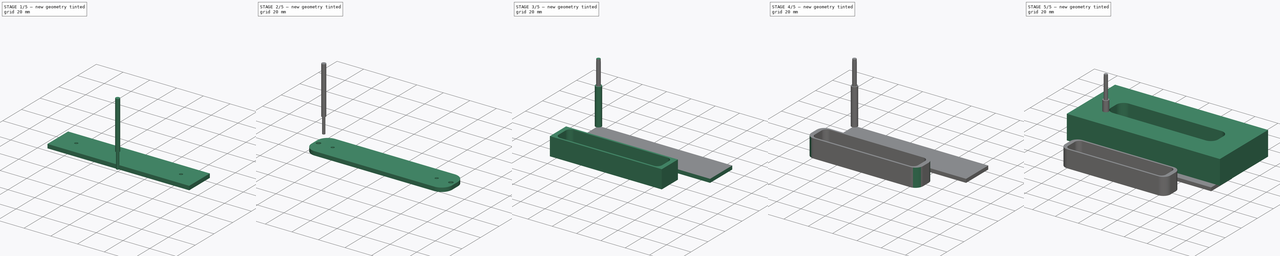
[diagram: build sequence overview — one tinted view per stage of 5, left to right]
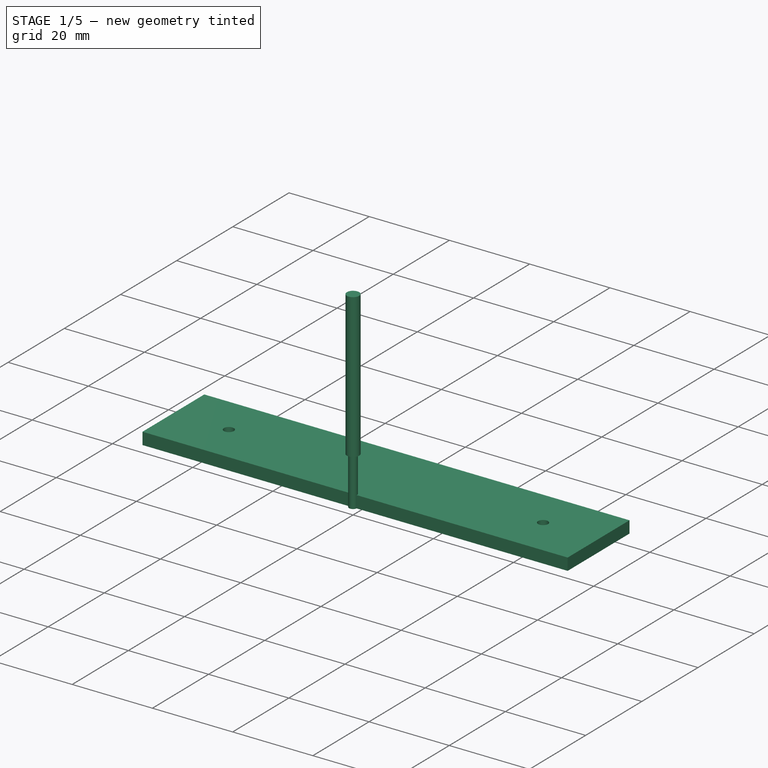
[diagram: stage 1 of 5 — iso view after this stage's code; geometry added in this stage tinted green]
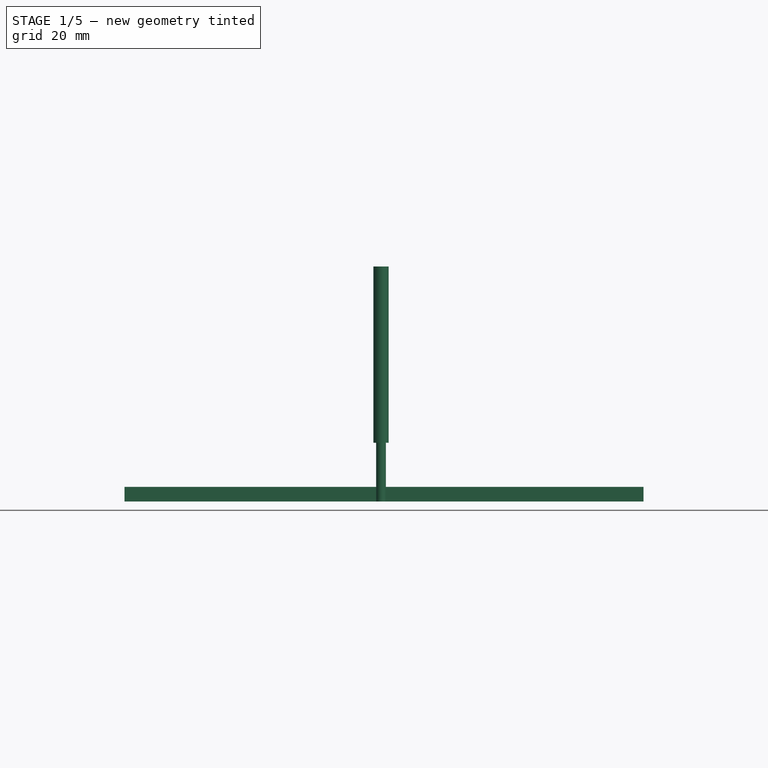
[diagram: stage 1 of 5 — front view after this stage's code; geometry added in this stage tinted green]
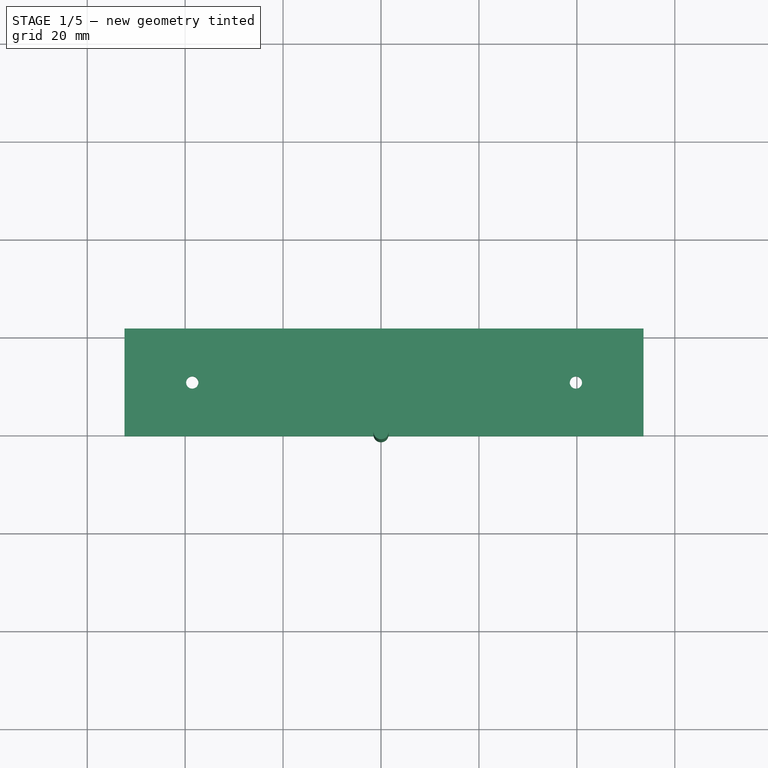
[diagram: stage 1 of 5 — top view after this stage's code; geometry added in this stage tinted green]
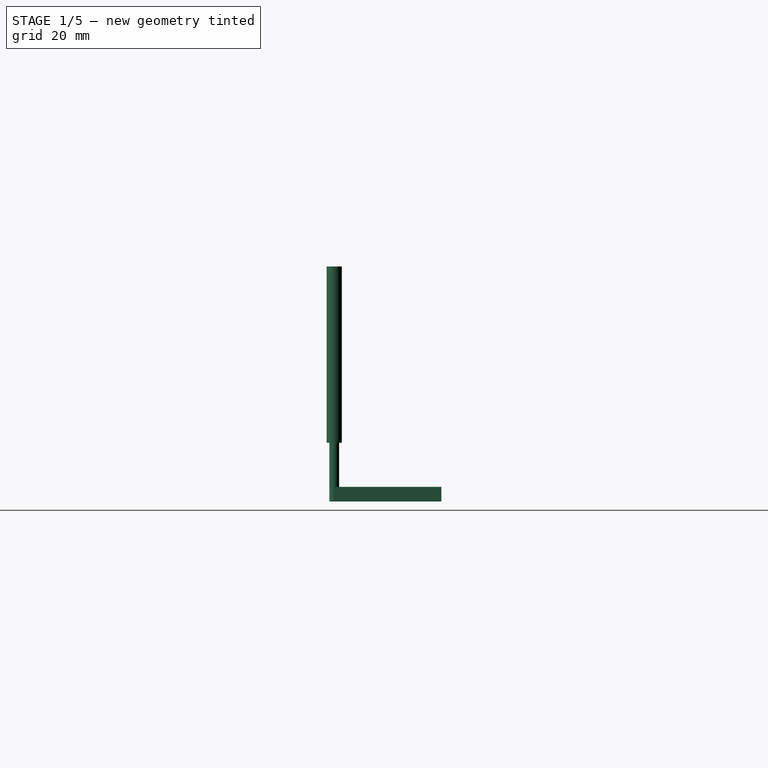
[diagram: stage 1 of 5 — right view after this stage's code; geometry added in this stage tinted green]
FCSTD DOCUMENT  (FreeCAD 0.21R33771 (Git))
Label: RGB Light Case
License: All rights reserved
LicenseURL: http://en.wikipedia.org/wiki/All_rights_reserved
objects: Part::Feature×19, App::Part×18, Sketcher::SketchObject×8, PartDesign::Pad×5, Path::FeaturePython×5, PartDesign::Fillet×4, Part::FeaturePython×4, PartDesign::Body×3, PartDesign::Pocket×3, App::DocumentObjectGroup×3, App::FeaturePython×1, App::MeasureDistance×1
note: 59 computed .brp shape members not serialized (recipe doc carries the construction recipe); baked Part::Feature solids carry a one-line shape summary decoded from their .brp

FEATURE [PartDesign::Body] Body001  label="lighting case"
  Group = -> [Sketch001,Pad001,Fillet001,Fillet002,Sketch080,Pad002,Sketch081,Pad003,Sketch082,Pocket]
  Origin = -> Origin018
  Tip = -> Pocket
FEATURE [App::Part] Part001  label="pcb spacers"
  Group = -> [Part__Feature304,Part__Feature303]
  Origin = -> Origin084
  Placement = pos=(46.39,-59.88,15) rot=(0,0,1;0rad)
FEATURE [Sketcher::SketchObject] Sketch086
  FullyConstrained = false
  sketch-geometry (9):
    g0: LineSegment StartX=-52.39 StartY=21.86 StartZ=0 EndX=53.61 EndY=21.86 EndZ=0
    g1: LineSegment StartX=53.61 StartY=21.86 StartZ=0 EndX=53.61 EndY=-0.14 EndZ=0
    g2: LineSegment StartX=53.61 StartY=-0.14 StartZ=0 EndX=-52.39 EndY=-0.14 EndZ=0
    g3: LineSegment StartX=-52.39 StartY=-0.14 StartZ=0 EndX=-52.39 EndY=21.86 EndZ=0
    g4: LineSegment StartX=-39 StartY=20.56 StartZ=0 EndX=-39 EndY=21.86 EndZ=0
    g5: LineSegment StartX=47.31 StartY=14.2 StartZ=0 EndX=51.6051 EndY=14.2 EndZ=0
    g6: LineSegment StartX=51.605 StartY=14.2105 StartZ=0 EndX=51.605 EndY=21.85 EndZ=0
    g7: LineSegment StartX=-46.1 StartY=7.5 StartZ=0 EndX=-52.39 EndY=7.5 EndZ=0
    g8: LineSegment StartX=47.3 StartY=7.5 StartZ=0 EndX=53.61 EndY=7.5 EndZ=0
  constraints (18):
    c: Coincident(g0,g1)
    c: Coincident(g1,g2)
    c: Coincident(g2,g3)
    c: Coincident(g3,g0)
    c: Horizontal(g0)
    c: Horizontal(g2)
    c: Vertical(g1)
    c: Vertical(g3)
    c: DistanceX(g0,g0) = 106
    c: DistanceY(g3,g3) = 22
    c: Vertical(g4)
    c: Horizontal(g5)
    c: Vertical(g6)
    c: PointOnObject(g7,g3)
    c: Horizontal(g7)
    c: PointOnObject(g8,g1)
    c: Horizontal(g8)
    c: DistanceX(g8,g8) = 6.31
FEATURE [PartDesign::Pad] Pad005
  Direction = (0,0,1)
  Length = 3
  Length2 = 10
  Profile = -> Sketch086
  ReferenceAxis = -> Sketch086 [N_Axis]
  Type = 0
FEATURE [Sketcher::SketchObject] Sketch087
  FullyConstrained = false
  MapMode = 5
  Placement = pos=(0,0,3) rot=(0,0,1;0rad)
  sketch-geometry (2):
    g0: Circle CenterX=-38.55 CenterY=10.83 CenterZ=0 NormalX=0 NormalY=0 NormalZ=1 AngleXU=0 Radius=1.25
    g1: Circle CenterX=39.8 CenterY=10.8236 CenterZ=0 NormalX=0 NormalY=0 NormalZ=1 AngleXU=0 Radius=1.25
  constraints (2):
    c: Diameter(g0) = 2.5
    c: Diameter(g1) = 2.5
FEATURE [PartDesign::Pocket] Pocket003
  BaseFeature = -> Pad005
  Direction = (0,0,-1)
  Length = 3
  Length2 = 5
  Profile = -> Sketch087
  ReferenceAxis = -> Sketch087 [N_Axis]
  Type = 0
FEATURE [Part::FeaturePython] ToolBit001  label="2mm_Endmill"  # Path/CAM toolbit (typed FeaturePython)
  BitPropertyNames = Chipload | CuttingEdgeHeight | Diameter | Flutes | Length | Material | ShankDiameter | SpindleDirection
  BitShape = C:/Program Files/FreeCAD 0.21/Mod\Path\Tools\Shape\endmill.fcstd
  Chipload = 0
  CuttingEdgeHeight = 12
  Diameter = 2
  File = <userpath>/AppData/Roaming/FreeCAD/Macro/Bit/2mm_Endmill.fctb
  Flutes = 0
  Length = 48
  Material = 0
  ShankDiameter = 3.1
  ShapeName = endmill
  SpindleDirection = 0
FEATURE [Path::FeaturePython] _mm_Endmill  label="2mm_Endmill001"  # Path/CAM operation (typed FeaturePython)
  HorizFeed = 2.83333
  HorizRapid = 0
  SpindleDir = 0
  SpindleSpeed = 10000
  Tool = -> ToolBit001
  ToolNumber = 2
  VertFeed = 2
  VertRapid = 0
  expr: HorizRapid = SetupSheet.HorizRapid
  expr: VertRapid = SetupSheet.VertRapid
FEATURE [App::DocumentObjectGroup] Tools
  Group = -> [TC__Default_Tool,_mm_Endmill]
FEATURE [Path::FeaturePython] Helix  # Path/CAM operation (typed FeaturePython)
  Active = true
  Base = -> [Clone]
  ClearanceHeight = 5
  CoolantMode = 0
  CycleTime = 00:01:18
  Direction = 0
  FinalDepth = -3
  OffsetExtra = 0
  OpFinalDepth = -3
  OpStartDepth = 0
  OpStockZMax = 0
  OpStockZMin = -3
  OpToolDiameter = 2
  SafeHeight = 3
  StartDepth = 0
  StartRadius = 0
  StartSide = 0
  StepDown = 2
  StepOver = 50
  ToolController = -> _mm_Endmill
  expr: ClearanceHeight = OpStockZMax + SetupSheet.ClearanceHeightOffset
  expr: FinalDepth = OpFinalDepth
  expr: SafeHeight = OpStockZMax + SetupSheet.SafeHeightOffset
  expr: StartDepth = OpStartDepth
  expr: StepDown = OpToolDiameter
FEATURE [Path::FeaturePython] Profile  # Path/CAM operation (typed FeaturePython)
  Active = true
  AreaParams:
    Tolerance = 1e-07
    FitArcs = True
    Simplify = False
    CleanDistance = 0.0
    Accuracy = 0.01
    Unit = 1.0
    MinArcPoints = 4
    MaxArcPoints = 100
    ClipperScale = 10000000.0
    Fill = 0
    Coplanar = 0
    Reorient = True
    Outline = False
    Explode = False
    OpenMode = 0
    Deflection = 0.01
    SubjectFill = 0
    ClipFill = 0
    Offset = 1.0
    ExtraPass = 0
    Stepover = 0.0
    LastStepover = 0.0
    JoinType = 0
    EndType = 0
    MiterLimit = 2.0
    RoundPrecision = 0.0
    PocketMode = 0
    ToolRadius = 1.0
    PocketExtraOffset = 0.0
    PocketStepover = 0.0
    PocketLastStepover = 0.0
    FromCenter = False
    Angle = 45.0
    AngleShift = 0.0
    Shift = 0.0
    Thicken = False
    SectionCount = -1
    Stepdown = 1.0
    SectionOffset = 0.0
    SectionTolerance = 1e-07
    SectionMode = 2
    Project = False
  Base = -> [Clone]
  ClearanceHeight = 5
  CoolantMode = 0
  CycleTime = 00:03:36
  Direction = 0
  FinalDepth = -3
  HandleMultipleFeatures = 0
  JoinType = 0
  MiterLimit = 0.1
  OffsetExtra = 0
  OpFinalDepth = -3
  OpStartDepth = 0
  OpStockZMax = 0
  OpStockZMin = -3
  OpToolDiameter = 2
  PathParams = {'orientation': 1, 'feedrate': 2.8333333333333335, 'feedrate_v': 2.0, 'verbose': True, 'resume_height': 3.0, 'retraction': 5.0, 'return_end': True, 'preamble': False}
  SafeHeight = 3
  Side = 0
  SplitArcs = false
  StartDepth = 0
  StartPoint = (0,0,0)
  StepDown = 2
  ToolController = -> _mm_Endmill
  UseComp = true
  UseStartPoint = false
  processCircles = false
  processHoles = false
  processPerimeter = true
  expr: ClearanceHeight = OpStockZMax + SetupSheet.ClearanceHeightOffset
  expr: FinalDepth = OpFinalDepth
  expr: SafeHeight = OpStockZMax + SetupSheet.SafeHeightOffset
  expr: StartDepth = OpStartDepth
  expr: StepDown = OpToolDiameter
FEATURE [App::DocumentObjectGroup] Operations
  Group = -> [Helix,Profile]
FEATURE [Path::FeaturePython] Job  # Path/CAM operation (typed FeaturePython)
  CycleTime = 00:04:54
  Fixtures = G54
  GeometryTolerance = 0.01
  JobType = 0
  LastPostProcessDate = 2024-12-17 12:00:52.574856
  LastPostProcessOutput = <userpath>\OneDrive\Github-projects\ElectricGuitarMK1\Research and Development\Interface Section\RGB Lighting comps\RGB Light Case.nc
  Model = -> Model
  Operations = -> Operations
  OrderOutputBy = 0
  PostProcessor = 1
  SetupSheet = -> SetupSheet
  SplitOutput = false
  Stock = -> Stock
  Tools = -> Tools
FEATURE [App::MeasureDistance] Distance  label="Distance: 109.83086 mm"
  Distance = 109.831
  P1 = (0,-26,0)
  P2 = (109.831,-26,0)
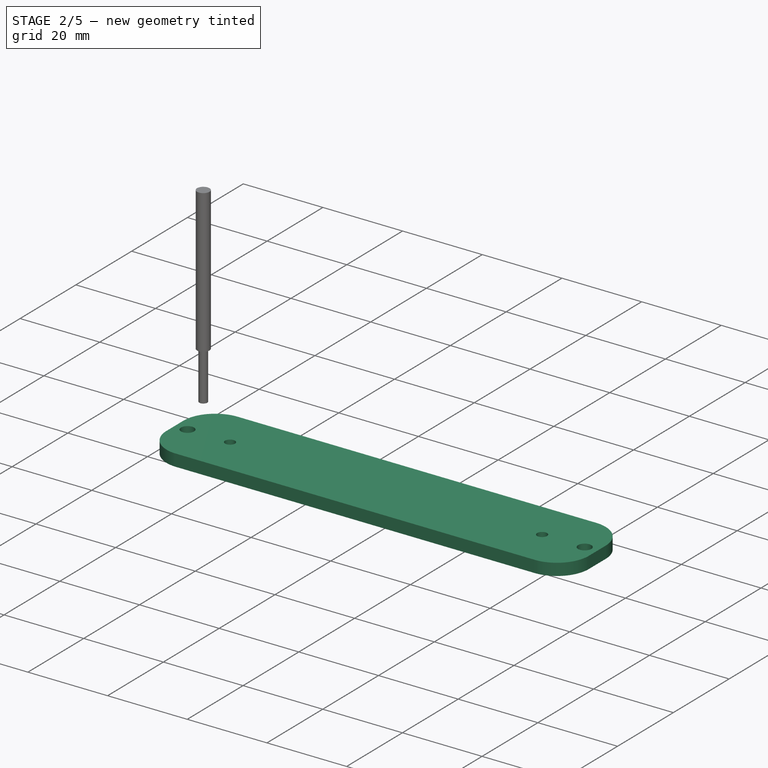
[diagram: stage 2 of 5 — iso view after this stage's code; geometry added in this stage tinted green]
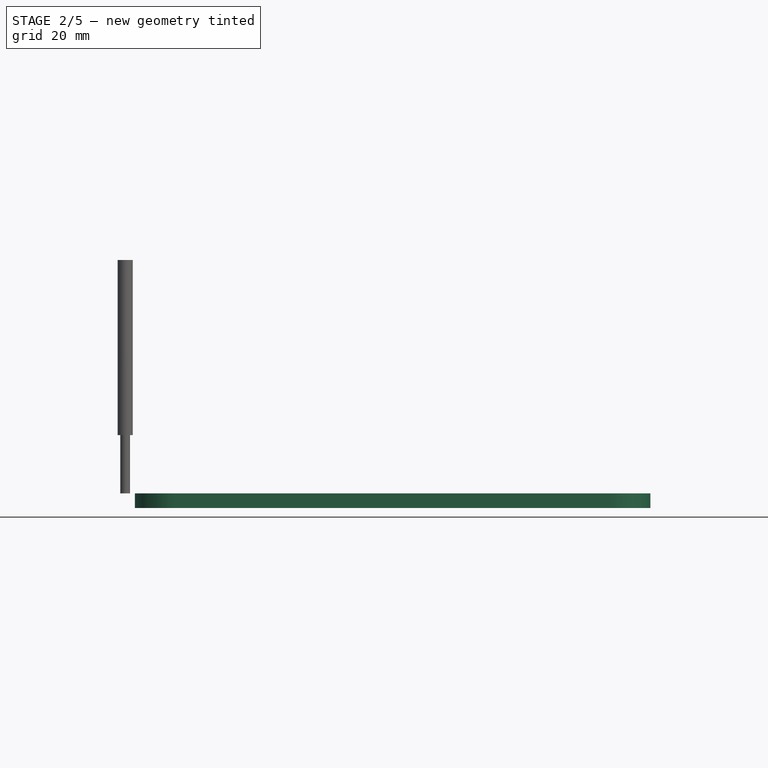
[diagram: stage 2 of 5 — front view after this stage's code; geometry added in this stage tinted green]
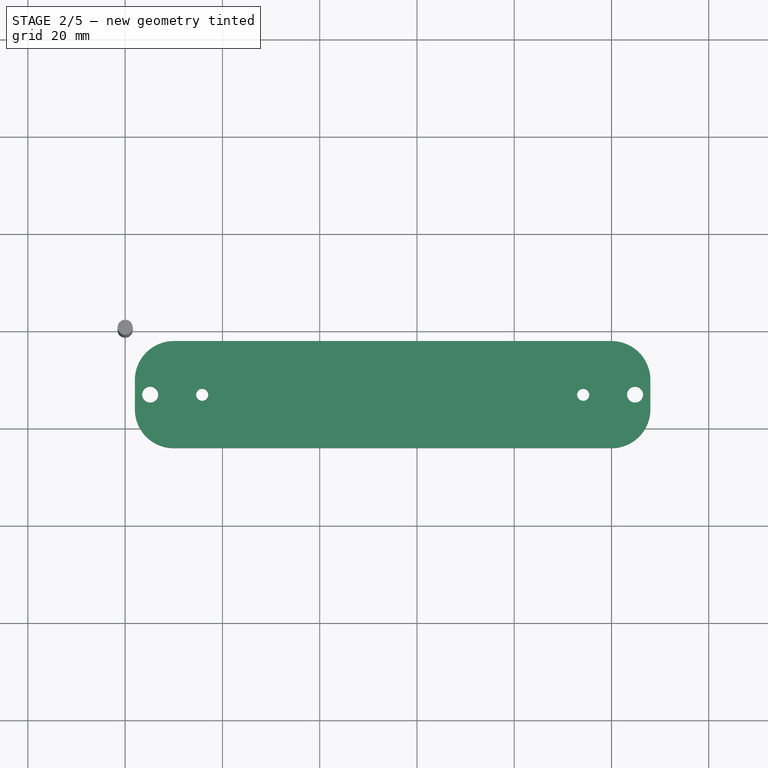
[diagram: stage 2 of 5 — top view after this stage's code; geometry added in this stage tinted green]
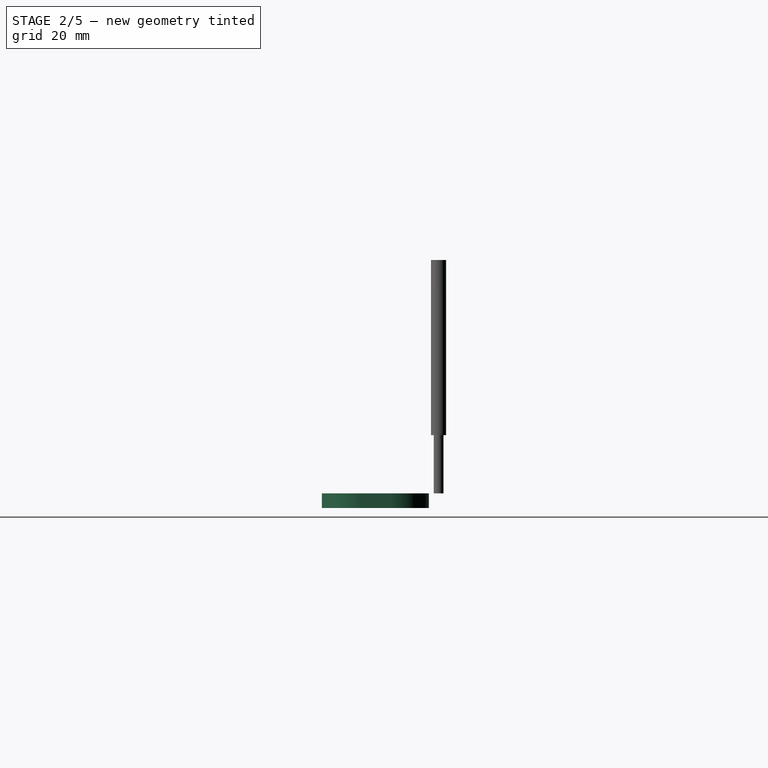
[diagram: stage 2 of 5 — right view after this stage's code; geometry added in this stage tinted green]
FEATURE [PartDesign::Fillet] Fillet005
  Base = -> Pocket003 [Edge1,Edge5,Edge2,Edge8]
  BaseFeature = -> Pocket003
  Radius = 8
  SupportTransform = false
  UseAllEdges = false
FEATURE [Sketcher::SketchObject] Sketch088
  FullyConstrained = false
  MapMode = 5
  Placement = pos=(0,0,3) rot=(0,0,1;0rad)
  Support = -> [Fillet005]
  sketch-geometry (10):
    g0: LineSegment StartX=-43 StartY=21.86 StartZ=0 EndX=-43 EndY=-0.14 EndZ=0
    g1: LineSegment StartX=-43.01 StartY=-0.14 StartZ=0 EndX=-43.01 EndY=10.86 EndZ=0
    g2: LineSegment StartX=-43.01 StartY=10.86 StartZ=0 EndX=-52.39 EndY=10.86 EndZ=0
    g3: LineSegment StartX=-52.39 StartY=10.8 StartZ=0 EndX=-46.09 EndY=10.8 EndZ=0
    g4: LineSegment StartX=-52.39 StartY=10.7 StartZ=0 EndX=-49.24 EndY=10.7 EndZ=0
    g5: LineSegment StartX=-49.24 StartY=10.7 StartZ=0 EndX=-49.24 EndY=10.85 EndZ=0
    g6: Circle CenterX=-49.2401 CenterY=10.86 CenterZ=0 NormalX=0 NormalY=0 NormalZ=1 AngleXU=0 Radius=1.65
    g7: LineSegment StartX=-43.01 StartY=10.86 StartZ=0 EndX=53.61 EndY=10.86 EndZ=0
    g8: LineSegment StartX=53.61 StartY=10.85 StartZ=0 EndX=50.46 EndY=10.85 EndZ=0
    g9: Circle CenterX=50.4602 CenterY=10.86 CenterZ=0 NormalX=0 NormalY=0 NormalZ=1 AngleXU=0 Radius=1.65
  constraints (17):
    c: Vertical(g0)
    c: Vertical(g1)
    c: Coincident(g2,g1)
    c: Horizontal(g2)
    c: Horizontal(g3)
    c: DistanceX(g3,g3) = 6.3
    c: Horizontal(g4)
    c: Coincident(g5,g4)
    c: Vertical(g5)
    c: PointOnObject(g6,g2)
    c: Diameter(g6) = 3.3
    c: Coincident(g7,g1)
    c: Horizontal(g7)
    c: Horizontal(g8)
    c: DistanceX(g8,g8) = 3.15
    c: PointOnObject(g9,g7)
    c: Diameter(g9) = 3.3
FEATURE [PartDesign::Pocket] Pocket004
  BaseFeature = -> Fillet005
  Direction = (0,0,-1)
  Length = 3
  Length2 = 5
  Profile = -> Sketch088
  ReferenceAxis = -> Sketch088 [N_Axis]
  Type = 0
FEATURE [PartDesign::Body] Body008  label="Acrylic Clear Plate001"
  Group = -> [Sketch086,Pad005,Sketch087,Pocket003,Fillet005,Sketch088,Pocket004]
  Origin = -> Origin085
  Placement = pos=(46.37,-59.87,16) rot=(0,0,1;0rad)
  Tip = -> Pocket004
FEATURE [App::FeaturePython] SetupSheet  # Path/CAM operation (typed FeaturePython)
  ClearanceHeightExpression = OpStockZMax+SetupSheet.ClearanceHeightOffset
  ClearanceHeightOffset = 5
  CoolantMode = 0
  CoolantModes = None | Flood | Mist
  FinalDepthExpression = OpFinalDepth
  HorizRapid = 0
  SafeHeightExpression = OpStockZMax+SetupSheet.SafeHeightOffset
  SafeHeightOffset = 3
  StartDepthExpression = OpStartDepth
  StepDownExpression = OpToolDiameter
  VertRapid = 0
FEATURE [Part::FeaturePython] Clone  label="Model-Acrylic Clear Plate001"  # Draft clone (typed FeaturePython)
  AttacherType = Attacher::AttachEngine3D
  Fuse = false
  Objects = -> [Body008]
  PathResource = Model
  Placement = pos=(54.39,-23.86,-3) rot=(0,0,1;0rad)
  Scale = (1,1,1)
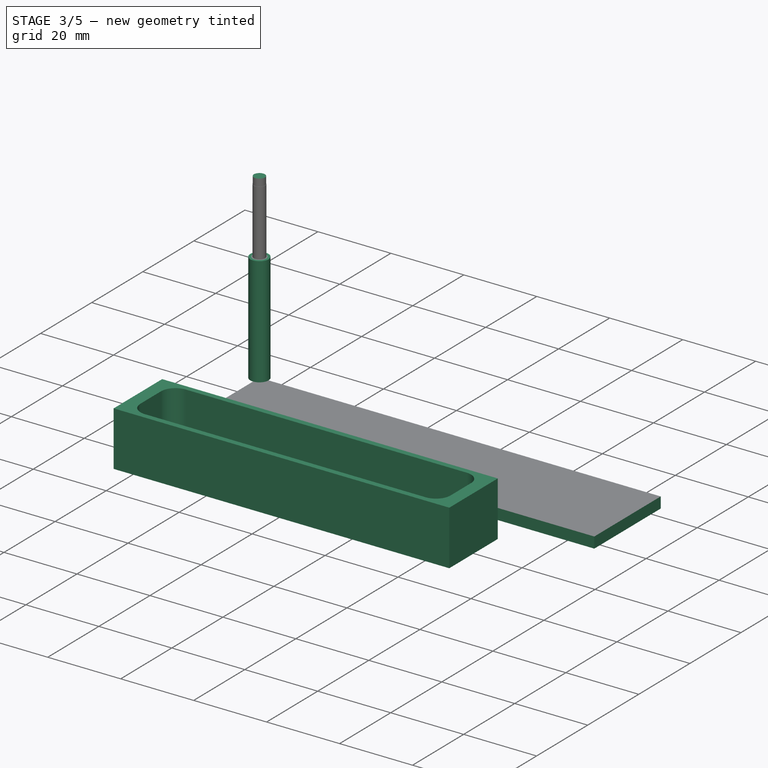
[diagram: stage 3 of 5 — iso view after this stage's code; geometry added in this stage tinted green]
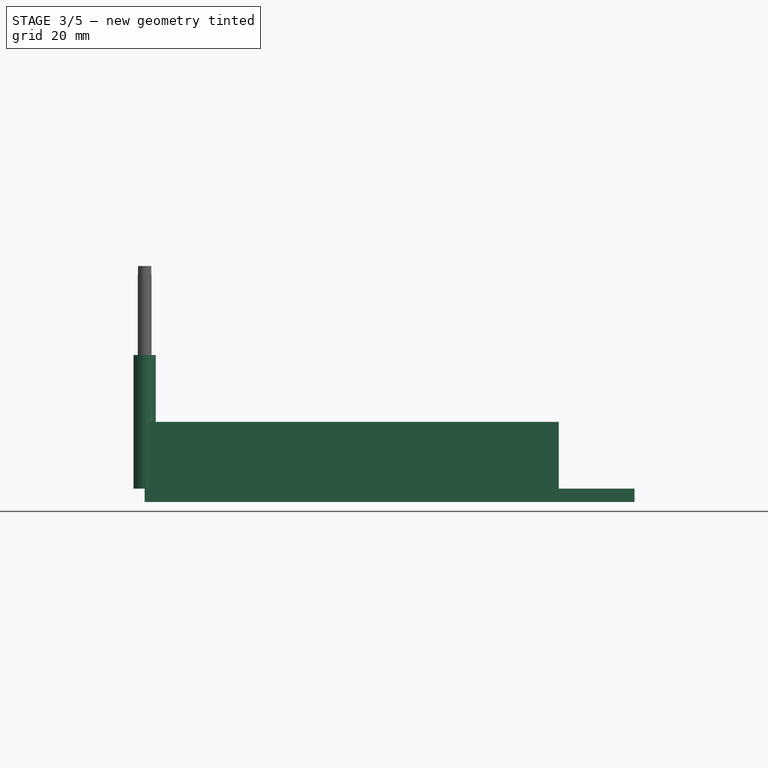
[diagram: stage 3 of 5 — front view after this stage's code; geometry added in this stage tinted green]
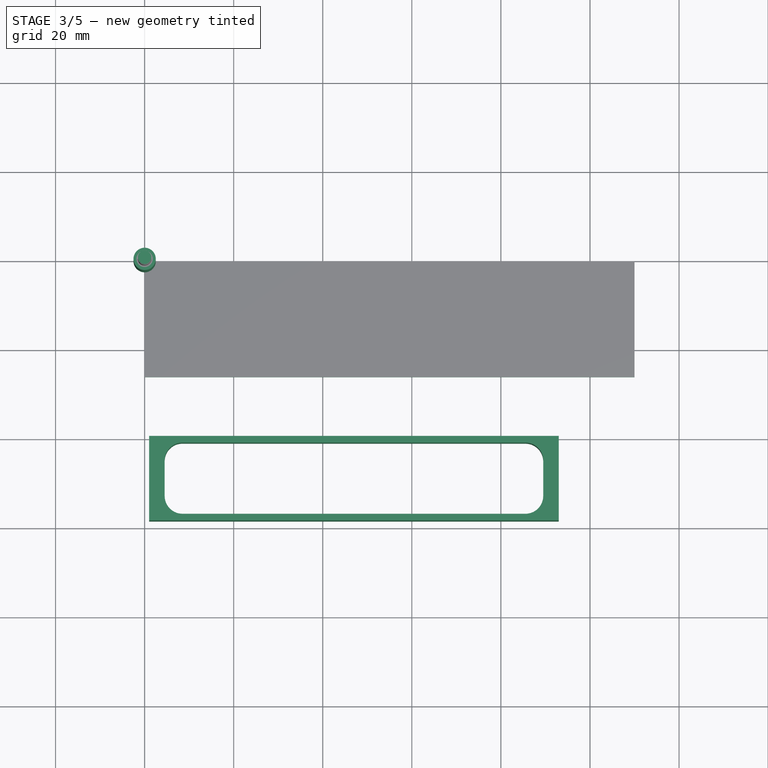
[diagram: stage 3 of 5 — top view after this stage's code; geometry added in this stage tinted green]
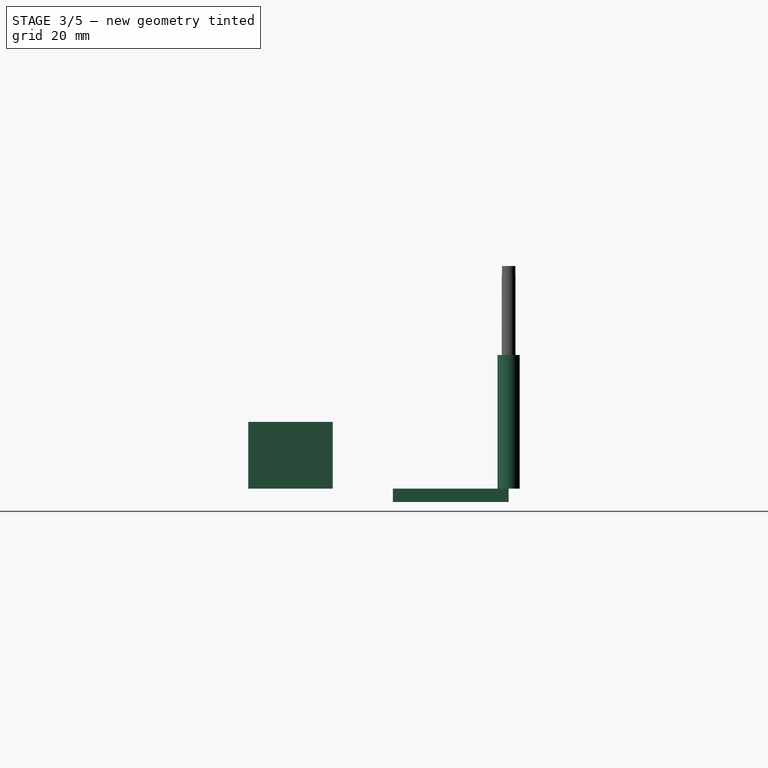
[diagram: stage 3 of 5 — right view after this stage's code; geometry added in this stage tinted green]
FEATURE [PartDesign::Body] Body  label="pocket custom example"
  Group = -> [Sketch,Pad,Fillet]
  Origin = -> Origin
  Placement = pos=(0.3,-58.7,-6) rot=(0,0,1;0rad)
  Tip = -> Fillet
FEATURE [Sketcher::SketchObject] Sketch001
  FullyConstrained = false
  MapMode = 5
  Support = -> [XY_Plane018]
  sketch-geometry (19):
    g0: LineSegment StartX=9 StartY=-41.5265 StartZ=0 EndX=9 EndY=-41.0265 EndZ=0
    g1: LineSegment StartX=9 StartY=-56.475 StartZ=0 EndX=9 EndY=-56.98 EndZ=0
    g2: LineSegment StartX=5 StartY=-45.6 StartZ=0 EndX=4.5 EndY=-45.6 EndZ=0
    g3: LineSegment StartX=89 StartY=-52 StartZ=0 EndX=89.5 EndY=-52 EndZ=0
    g4: LineSegment StartX=4.5 StartY=-45.6 StartZ=0 EndX=4.5 EndY=-41 EndZ=0
    g5: LineSegment StartX=9 StartY=-56.98 StartZ=0 EndX=89.5 EndY=-56.98 EndZ=0
    g6: LineSegment StartX=89.5 StartY=-56.98 StartZ=0 EndX=4.5 EndY=-56.98 EndZ=0
    g7: LineSegment StartX=4.5 StartY=-56.98 StartZ=0 EndX=4.5 EndY=-41 EndZ=0
    g8: LineSegment StartX=4.5 StartY=-41 StartZ=0 EndX=89.5 EndY=-41 EndZ=0
    g9: LineSegment StartX=89.5 StartY=-41 StartZ=0 EndX=89.5 EndY=-56.98 EndZ=0
    g10: LineSegment StartX=1 StartY=-41 StartZ=0 EndX=1 EndY=-39.5 EndZ=0
    g11: LineSegment StartX=89.5 StartY=-56.98 StartZ=0 EndX=89.5 EndY=-58.48 EndZ=0
    g12: LineSegment StartX=89.5 StartY=-58.48 StartZ=0 EndX=93 EndY=-58.48 EndZ=0
    g13: LineSegment StartX=93 StartY=-58.48 StartZ=0 EndX=1 EndY=-58.48 EndZ=0
    g14: LineSegment StartX=1 StartY=-58.48 StartZ=0 EndX=1 EndY=-39.5 EndZ=0
    g15: LineSegment StartX=1 StartY=-39.5 StartZ=0 EndX=93 EndY=-39.5 EndZ=0
    g16: LineSegment StartX=93 StartY=-39.5 StartZ=0 EndX=93 EndY=-58.48 EndZ=0
    g17: LineSegment StartX=4.5 StartY=-41 StartZ=0 EndX=4.5 EndY=-39.5 EndZ=0
    g18: LineSegment StartX=4.5 StartY=-41 StartZ=0 EndX=1 EndY=-41 EndZ=0
  constraints (44):
    c: Vertical(g0)
    c: Vertical(g1)
    c: Horizontal(g2)
    c: Horizontal(g3)
    c: Coincident(g4,g2)
    c: Vertical(g4)
    c: Coincident(g5,g1)
    c: Horizontal(g5)
    c: Coincident(g6,g7)
    c: Coincident(g7,g8)
    c: Coincident(g8,g9)
    c: Coincident(g9,g6)
    c: Horizontal(g6)
    c: Horizontal(g8)
    c: Vertical(g7)
    c: Vertical(g9)
    c: Coincident(g6,g5)
    c: Coincident(g7,g4)
    c: DistanceX(g8,g8) = 85
    c: DistanceY(g9,g9) = 15.98
    c: Vertical(g10)
    c: Coincident(g11,g6)
    c: Vertical(g11)
    c: Coincident(g12,g11)
    c: Horizontal(g12)
    c: Coincident(g13,g14)
    c: Coincident(g14,g15)
    c: Coincident(g15,g16)
    c: Coincident(g16,g13)
    c: Horizontal(g13)
    c: Horizontal(g15)
    c: Vertical(g14)
    c: Vertical(g16)
    c: Coincident(g13,g12)
    c: Coincident(g14,g10)
    c: DistanceX(g15,g15) = 92
    c: DistanceX(g2,g2) = 0.5
    c: DistanceY(g0,g0) = 0.5
    c: DistanceY(g14,g14) = 18.98
    c: Coincident(g17,g7)
    c: Vertical(g17)
    c: DistanceY(g11,g11) = 1.5
    c: Coincident(g18,g7)
    c: Horizontal(g18)
FEATURE [PartDesign::Pad] Pad001
  Direction = (0,0,1)
  Length = 15
  Length2 = 10
  Profile = -> Sketch001
  ReferenceAxis = -> Sketch001 [N_Axis]
  Type = 0
FEATURE [PartDesign::Fillet] Fillet001
  Base = -> Pad001 [Edge17,Edge20,Edge13,Edge14]
  BaseFeature = -> Pad001
  Radius = 4
  SupportTransform = false
  UseAllEdges = false
FEATURE [App::DocumentObjectGroup] Model
  Group = -> [Clone]
FEATURE [Part::FeaturePython] ToolBit  label="Endmill"  # Path/CAM toolbit (typed FeaturePython)
  BitPropertyNames = Chipload | CuttingEdgeHeight | Diameter | Flutes | Length | Material | ShankDiameter | SpindleDirection
  BitShape = C:/Program Files/FreeCAD 0.21/Mod\Path\Tools\Shape\endmill.fcstd
  Chipload = 0
  CuttingEdgeHeight = 30
  Diameter = 5
  Flutes = 0
  Length = 50
  Material = 0
  ShankDiameter = 3
  ShapeName = endmill
  SpindleDirection = 0
FEATURE [Path::FeaturePython] TC__Default_Tool  label="TC: Default Tool"  # Path/CAM operation (typed FeaturePython)
  HorizFeed = 0
  HorizRapid = 0
  SpindleDir = 0
  SpindleSpeed = 0
  Tool = -> ToolBit
  ToolNumber = 1
  VertFeed = 0
  VertRapid = 0
  expr: HorizRapid = SetupSheet.HorizRapid
  expr: VertRapid = SetupSheet.VertRapid
FEATURE [Part::FeaturePython] Stock  # WARN: FeaturePython — macro-defined, semantics opaque (R4)
  Base = -> Model
  ExtXneg = 2
  ExtXpos = 2
  ExtYneg = 2
  ExtYpos = 2
  ExtZneg = 0
  ExtZpos = 0
  Placement = pos=(2,-24,-3) rot=(0,0,1;0rad)
  StockType = FromBase
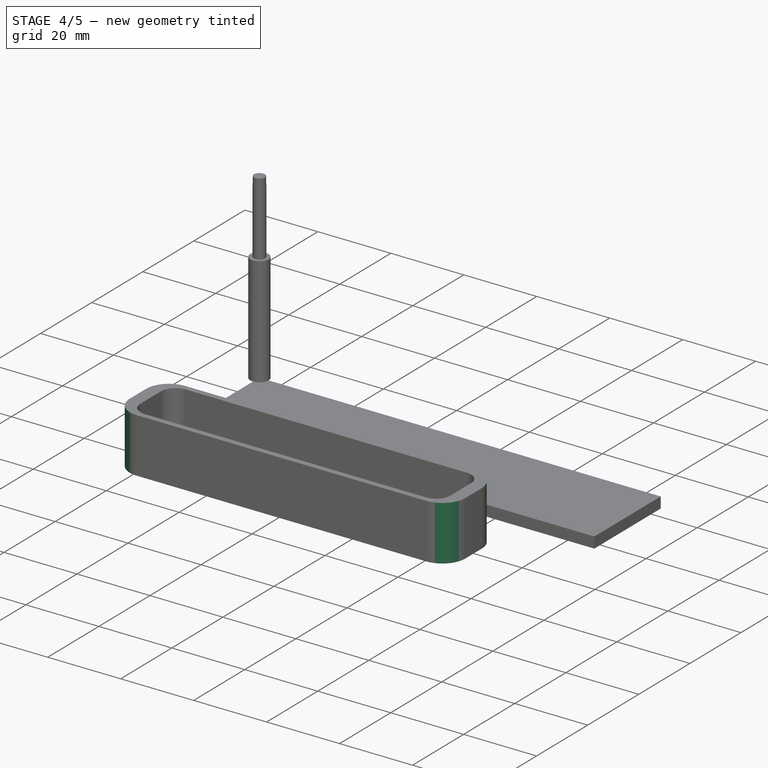
[diagram: stage 4 of 5 — iso view after this stage's code; geometry added in this stage tinted green]
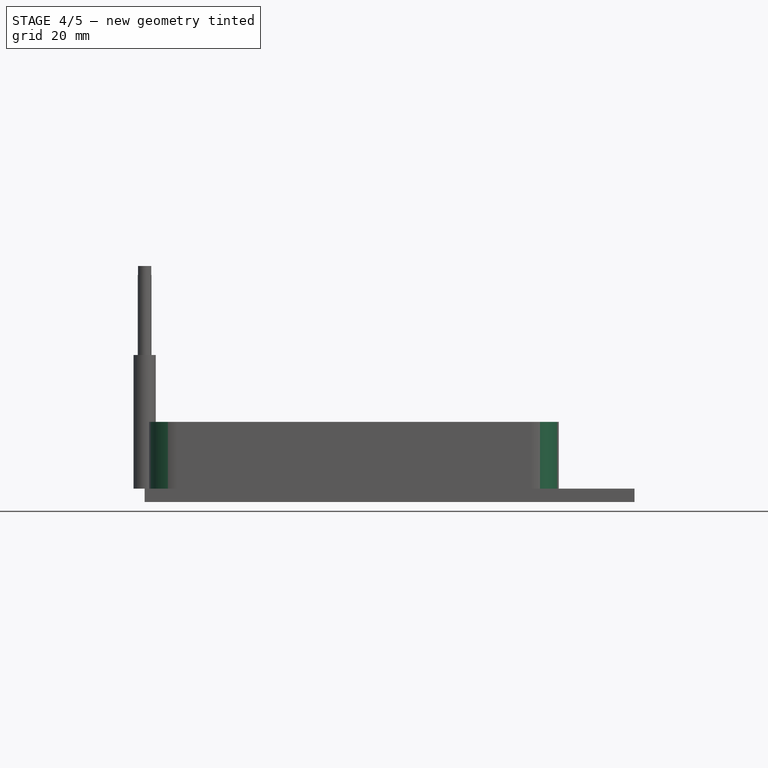
[diagram: stage 4 of 5 — front view after this stage's code; geometry added in this stage tinted green]
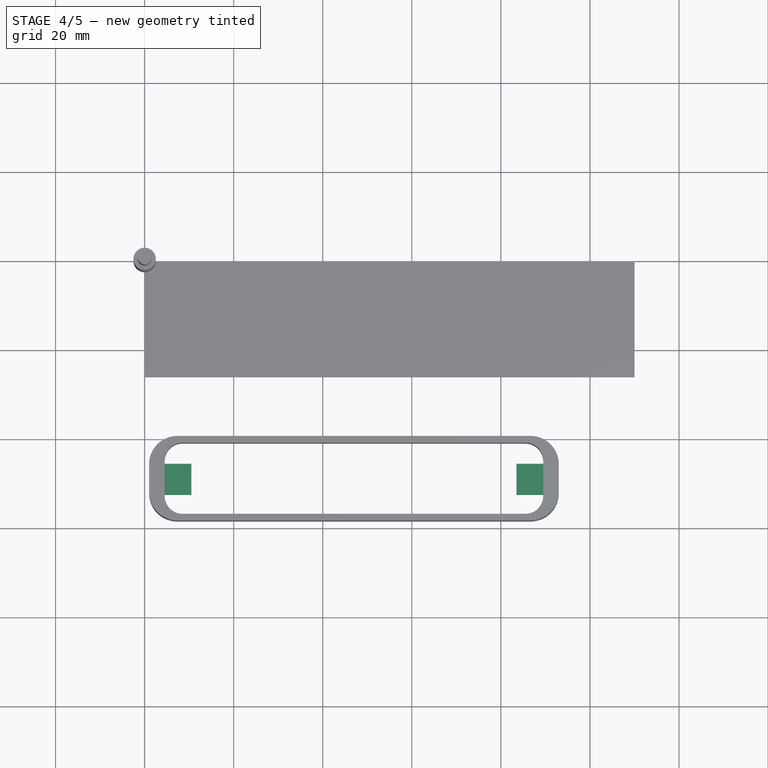
[diagram: stage 4 of 5 — top view after this stage's code; geometry added in this stage tinted green]
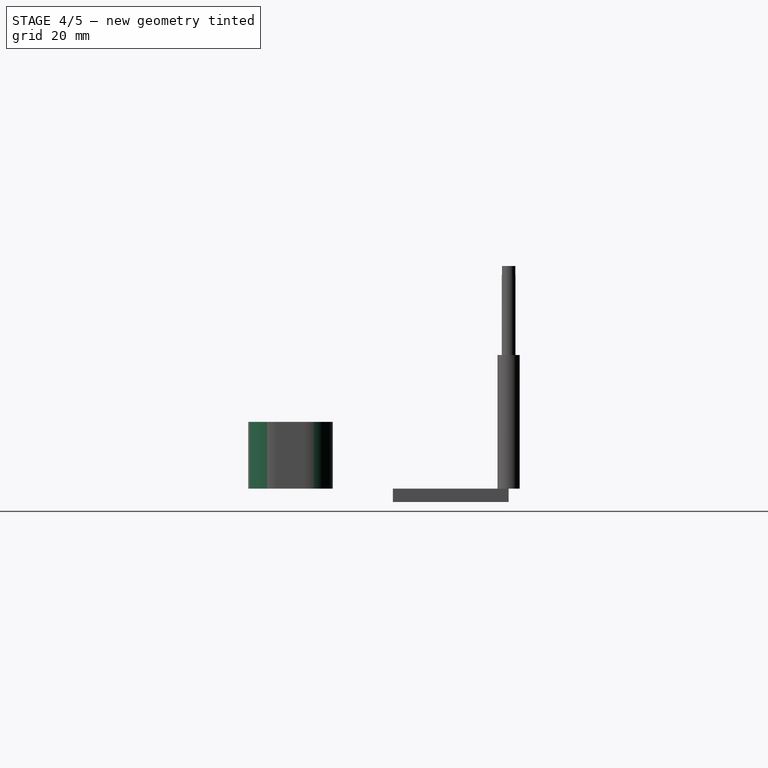
[diagram: stage 4 of 5 — right view after this stage's code; geometry added in this stage tinted green]
FEATURE [PartDesign::Fillet] Fillet002
  Base = -> Fillet001 [Edge35,Edge34,Edge36,Edge33]
  BaseFeature = -> Fillet001
  Radius = 6.35
  SupportTransform = false
  UseAllEdges = false
FEATURE [Part::Feature] Part__Feature017  label="SOLID016"
  shape: bbox 3.2 x 1.6 x 0.55 mm, 26 faces (baked)
FEATURE [App::Part] R_1206_3216Metric001
  Group = -> [Part__Feature017]
  Origin = -> Origin019
  Placement = pos=(-25.275,-2.9125,1.65) rot=(0,0,-1;1.5708rad)
FEATURE [Part::Feature] Part__Feature018  label="SOLID017"
  shape: bbox 3.2 x 1.6 x 1.6 mm, 28 faces (baked)
FEATURE [App::Part] C_1206_3216Metric006
  Group = -> [Part__Feature018]
  Origin = -> Origin020
  Placement = pos=(-12.05,4.35,1.65) rot=(0,0,1;0rad)
FEATURE [Part::Feature] Part__Feature019  label="SOLID018"
  shape: bbox 6.985 x 6.828 x 5.4 mm, 41 faces (baked)
FEATURE [App::Part] CP_Elec_5x5_005  label="CP_Elec_5x5.005"
  Group = -> [Part__Feature019]
  Origin = -> Origin021
  Placement = pos=(-31.25,3.575,1.65) rot=(0,0,1;3.14159rad)
FEATURE [Part::Feature] Part__Feature020  label="SOLID019"
  shape: bbox 3.2 x 1.6 x 1.6 mm, 28 faces (baked)
FEATURE [App::Part] C_1206_3216Metric007
  Group = -> [Part__Feature020]
  Origin = -> Origin022
  Placement = pos=(12.925,4.35,1.65) rot=(0,0,1;0rad)
FEATURE [Part::Feature] Part__Feature021  label="SOLID020"
  shape: bbox 5.4 x 5 x 1.6 mm, 68 faces (baked)
FEATURE [App::Part] LED_WS2812B_PLCC4_5_0x5_0mm_P3_2mm006  label="LED_WS2812B_PLCC4_5.0x5.0mm_P3.2mm006"
  Group = -> [Part__Feature021]
  Origin = -> Origin023
  Placement = pos=(-10.75,-0.05,1.65) rot=(0,0,1;3.14159rad)
FEATURE [Part::Feature] Part__Feature022  label="SOLID021"
  shape: bbox 5.4 x 5 x 1.6 mm, 68 faces (baked)
FEATURE [App::Part] LED_WS2812B_PLCC4_5_0x5_0mm_P3_2mm007  label="LED_WS2812B_PLCC4_5.0x5.0mm_P3.2mm007"
  Group = -> [Part__Feature022]
  Origin = -> Origin024
  Placement = pos=(22.45,-0.05,1.65) rot=(0,0,1;3.14159rad)
FEATURE [Part::Feature] Part__Feature023  label="SOLID022"
  shape: bbox 3.2 x 1.6 x 1.6 mm, 28 faces (baked)
FEATURE [App::Part] C_1206_3216Metric008
  Group = -> [Part__Feature023]
  Origin = -> Origin025
  Placement = pos=(4.6,4.35,1.65) rot=(0,0,1;0rad)
FEATURE [Part::Feature] Part__Feature024  label="SOLID023"
  shape: bbox 3.2 x 1.6 x 1.6 mm, 28 faces (baked)
FEATURE [App::Part] C_1206_3216Metric009
  Group = -> [Part__Feature024]
  Origin = -> Origin026
  Placement = pos=(-3.725,4.35,1.65) rot=(0,0,1;0rad)
FEATURE [Part::Feature] Part__Feature025  label="SOLID024"
  shape: bbox 5.4 x 5 x 1.6 mm, 68 faces (baked)
FEATURE [App::Part] LED_WS2812B_PLCC4_5_0x5_0mm_P3_2mm008  label="LED_WS2812B_PLCC4_5.0x5.0mm_P3.2mm008"
  Group = -> [Part__Feature025]
  Origin = -> Origin027
  Placement = pos=(14.15,-0.05,1.65) rot=(0,0,1;3.14159rad)
FEATURE [Part::Feature] Part__Feature026  label="SOLID025"
  shape: bbox 3.2 x 1.6 x 1.6 mm, 28 faces (baked)
FEATURE [App::Part] C_1206_3216Metric010
  Group = -> [Part__Feature026]
  Origin = -> Origin028
  Placement = pos=(-20.375,4.35,1.65) rot=(0,0,1;0rad)
FEATURE [Part::Feature] Part__Feature027  label="SOLID026"
  shape: bbox 5.4 x 5 x 1.6 mm, 68 faces (baked)
FEATURE [App::Part] LED_WS2812B_PLCC4_5_0x5_0mm_P3_2mm009  label="LED_WS2812B_PLCC4_5.0x5.0mm_P3.2mm009"
  Group = -> [Part__Feature027]
  Origin = -> Origin029
  Placement = pos=(-19.05,-0.05,1.65) rot=(0,0,1;3.14159rad)
FEATURE [Part::Feature] Part__Feature028  label="SOLID027"
  shape: bbox 5.4 x 5 x 1.6 mm, 68 faces (baked)
FEATURE [App::Part] LED_WS2812B_PLCC4_5_0x5_0mm_P3_2mm010  label="LED_WS2812B_PLCC4_5.0x5.0mm_P3.2mm010"
  Group = -> [Part__Feature028]
  Origin = -> Origin030
  Placement = pos=(-2.45,-0.05,1.65) rot=(0,0,1;3.14159rad)
FEATURE [Part::Feature] Part__Feature029  label="SOLID028"
  shape: bbox 5.4 x 5 x 1.6 mm, 68 faces (baked)
FEATURE [App::Part] LED_WS2812B_PLCC4_5_0x5_0mm_P3_2mm011  label="LED_WS2812B_PLCC4_5.0x5.0mm_P3.2mm011"
  Group = -> [Part__Feature029]
  Origin = -> Origin031
  Placement = pos=(5.85,-0.05,1.65) rot=(0,0,1;3.14159rad)
FEATURE [Part::Feature] Part__Feature030  label="SOLID029"
  shape: bbox 3.2 x 1.6 x 1.6 mm, 28 faces (baked)
FEATURE [App::Part] C_1206_3216Metric011
  Group = -> [Part__Feature030]
  Origin = -> Origin032
  Placement = pos=(21.25,4.35,1.65) rot=(0,0,1;0rad)
FEATURE [Part::Feature] Part__Feature031  label="SOLID030"
  shape: bbox 7 x 4.95 x 4.2 mm, 162 faces (baked)
FEATURE [App::Part] JST_GH_BM03B_GHS_TBT_1x03_1MP_P1_25mm_Vertical002  label="JST_GH_BM03B-GHS-TBT_1x03-1MP_P1.25mm_Vertical002"
  Group = -> [Part__Feature031]
  Origin = -> Origin033
  Placement = pos=(32.05,-1.2,-0.05) rot=(0.707107,0.707107,0;3.14159rad)
FEATURE [Part::Feature] Part__Feature032  label="SOLID031"
  shape: bbox 7 x 4.95 x 4.2 mm, 162 faces (baked)
FEATURE [App::Part] JST_GH_BM03B_GHS_TBT_1x03_1MP_P1_25mm_Vertical003  label="JST_GH_BM03B-GHS-TBT_1x03-1MP_P1.25mm_Vertical003"
  Group = -> [Part__Feature032]
  Origin = -> Origin034
  Placement = pos=(-32.35,-4.125,-0.05) rot=(1,0,0;3.14159rad)
FEATURE [Part::Feature] Part__Feature033  label="RGB LED Mounting Board PCB001"
  shape: bbox 84 x 14.95 x 1.6 mm, 72 faces (baked)
FEATURE [App::Part] RGB_LED_Mounting_Board_002  label="RGB LED Mounting Board 002"
  Group = -> [R_1206_3216Metric001,C_1206_3216Metric006,CP_Elec_5x5_005,C_1206_3216Metric007,LED_WS2812B_PLCC4_5_0x5_0mm_P3_2mm006,LED_WS2812B_PLCC4_5_0x5_0mm_P3_2mm007,C_1206_3216Metric008,C_1206_3216Metric009,LED_WS2812B_PLCC4_5_0x5_0mm_P3_2mm008,C_1206_3216Metric010,LED_WS2812B_PLCC4_5_0x5_0mm_P3_2mm009,LED_WS2812B_PLCC4_5_0x5_0mm_P3_2mm010,LED_WS2812B_PLCC4_5_0x5_0mm_P3_2mm011,C_1206_3216Metric011,+3 more]
  Origin = -> Origin035
  Placement = pos=(47,-49,3.4) rot=(0,0,1;0rad)
FEATURE [Part::Feature] Part__Feature303  label="M2.5_MF_TORRETTA"
  Placement = pos=(-38.55,10.82,-10.01) rot=(0,0,1;0rad)
  shape: bbox 5.78 x 5.78 x 16.02 mm, 16 faces (baked)
FEATURE [Part::Feature] Part__Feature304  label="M2.5_MF_TORRETTA001"
  Placement = pos=(39.79,10.82,-10.01) rot=(0,0,1;0rad)
  shape: bbox 5.78 x 5.78 x 16.02 mm, 16 faces (baked)
FEATURE [Sketcher::SketchObject] Sketch080
  FullyConstrained = false
  MapMode = 5
  Placement = pos=(89.5,0,0) rot=(0.57735,-0.57735,-0.57735;2.0944rad)
  Support = -> [Fillet002]
  sketch-geometry (5):
    g0: LineSegment StartX=52.54 StartY=3.1 StartZ=0 EndX=45.54 EndY=3.1 EndZ=0
    g1: LineSegment StartX=45.54 StartY=3.1 StartZ=0 EndX=45.54 EndY=1.6 EndZ=0
    g2: LineSegment StartX=45.54 StartY=1.6 StartZ=0 EndX=52.54 EndY=1.6 EndZ=0
    g3: LineSegment StartX=52.54 StartY=1.6 StartZ=0 EndX=52.54 EndY=3.1 EndZ=0
    g4: LineSegment StartX=50.281 StartY=3 StartZ=0 EndX=47.8 EndY=3 EndZ=0
  constraints (11):
    c: Coincident(g0,g1)
    c: Coincident(g1,g2)
    c: Coincident(g2,g3)
    c: Coincident(g3,g0)
    c: Horizontal(g0)
    c: Horizontal(g2)
    c: Vertical(g1)
    c: Vertical(g3)
    c: DistanceX(g0,g0) = 7
    c: DistanceY(g3,g3) = 1.5
    c: Horizontal(g4)
FEATURE [PartDesign::Pad] Pad002
  BaseFeature = -> Fillet002
  Direction = (-1,0,0)
  Length = 6
  Length2 = 10
  Profile = -> Sketch080
  ReferenceAxis = -> Sketch080 [N_Axis]
  Type = 0
FEATURE [Sketcher::SketchObject] Sketch081
  FullyConstrained = false
  MapMode = 5
  Placement = pos=(4.5,0,0) rot=(0.57735,0.57735,0.57735;2.0944rad)
  Support = -> [Pad002]
  sketch-geometry (7):
    g0: LineSegment StartX=-45.54 StartY=3.1 StartZ=0 EndX=-52.54 EndY=3.1 EndZ=0
    g1: LineSegment StartX=-52.54 StartY=3.1 StartZ=0 EndX=-52.54 EndY=1.6 EndZ=0
    g2: LineSegment StartX=-52.54 StartY=1.6 StartZ=0 EndX=-45.54 EndY=1.6 EndZ=0
    g3: LineSegment StartX=-45.54 StartY=1.6 StartZ=0 EndX=-45.54 EndY=3.1 EndZ=0
    g4: LineSegment StartX=50.281 StartY=3 StartZ=0 EndX=47.8 EndY=3 EndZ=0
    g5: LineSegment StartX=-39.4 StartY=-2 StartZ=0 EndX=-49.04 EndY=-2 EndZ=0
    g6: LineSegment StartX=-39.4 StartY=3.1 StartZ=0 EndX=-49.0426 EndY=3.1 EndZ=0
  constraints (13):
    c: Coincident(g0,g1)
    c: Coincident(g1,g2)
    c: Coincident(g2,g3)
    c: Coincident(g3,g0)
    c: Horizontal(g0)
    c: Horizontal(g2)
    c: Vertical(g1)
    c: Vertical(g3)
    c: DistanceX(g0,g0) = 7
    c: DistanceY(g3,g3) = 1.5
    c: Horizontal(g4)
    c: Horizontal(g5)
    c: Horizontal(g6)
FEATURE [PartDesign::Pad] Pad003
  BaseFeature = -> Pad002
  Direction = (1,0,0)
  Length = 6
  Length2 = 10
  Profile = -> Sketch081
  ReferenceAxis = -> Sketch081 [N_Axis]
  Type = 0
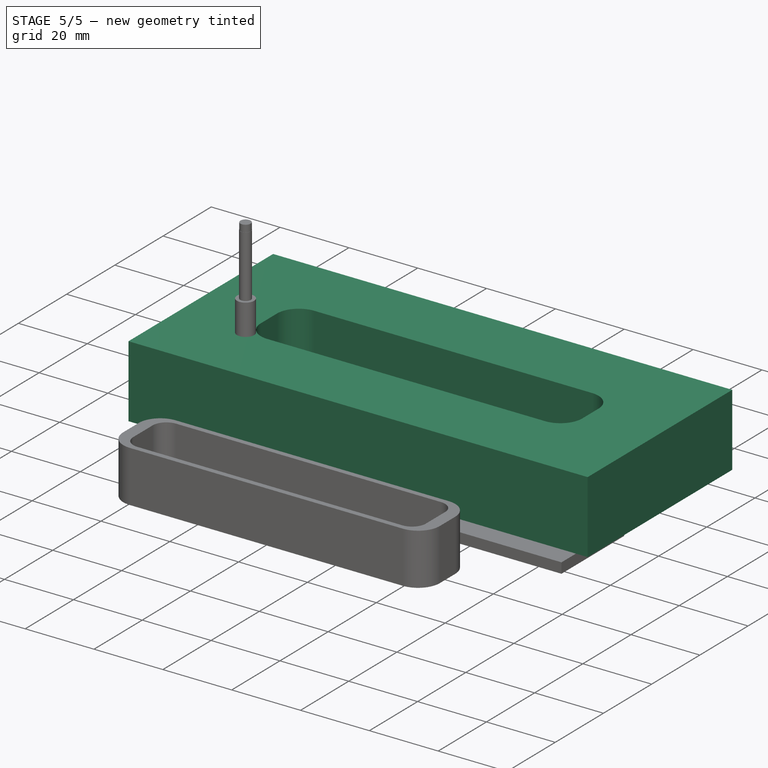
[diagram: stage 5 of 5 — iso view after this stage's code; geometry added in this stage tinted green]
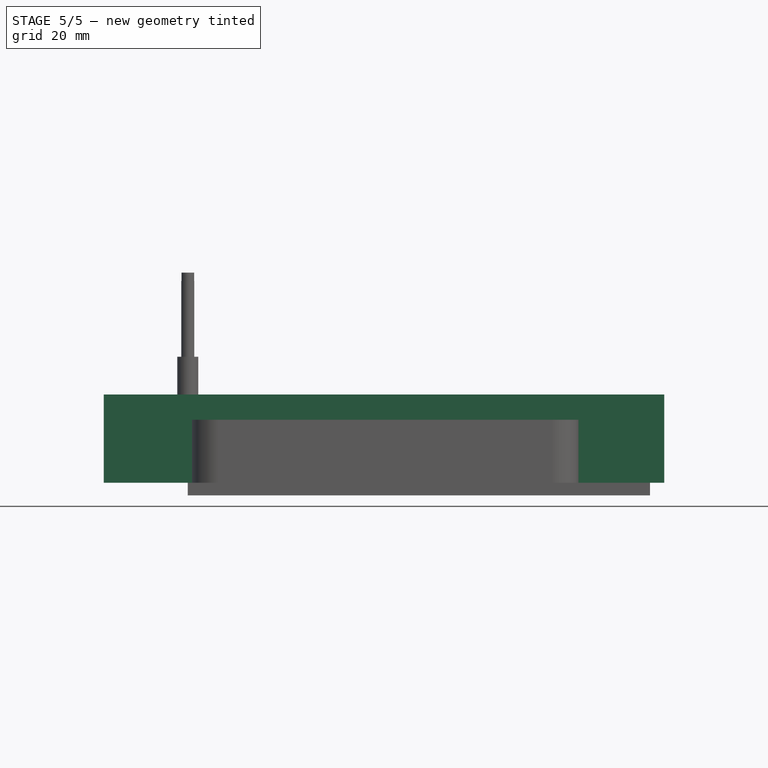
[diagram: stage 5 of 5 — front view after this stage's code; geometry added in this stage tinted green]
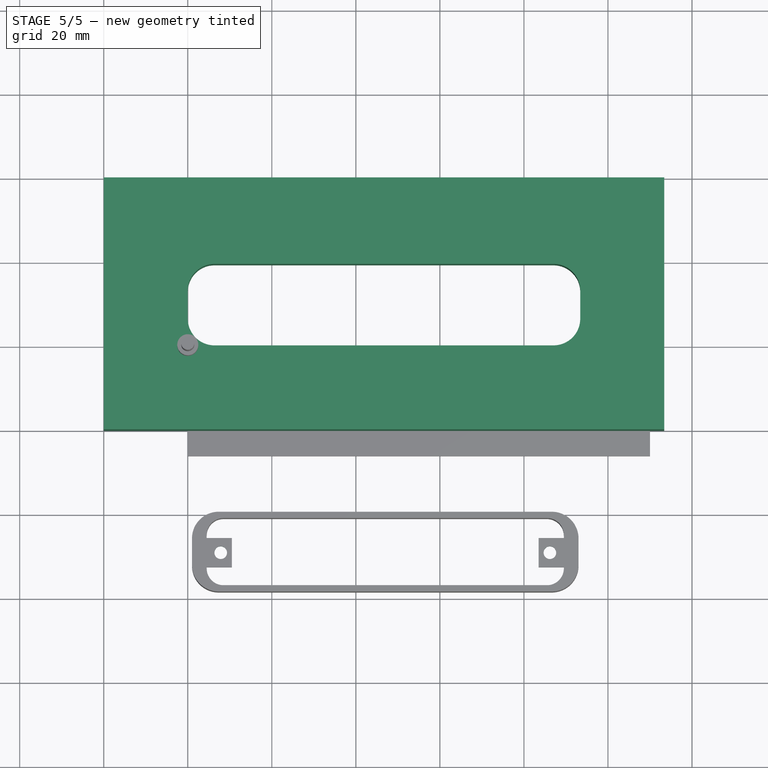
[diagram: stage 5 of 5 — top view after this stage's code; geometry added in this stage tinted green]
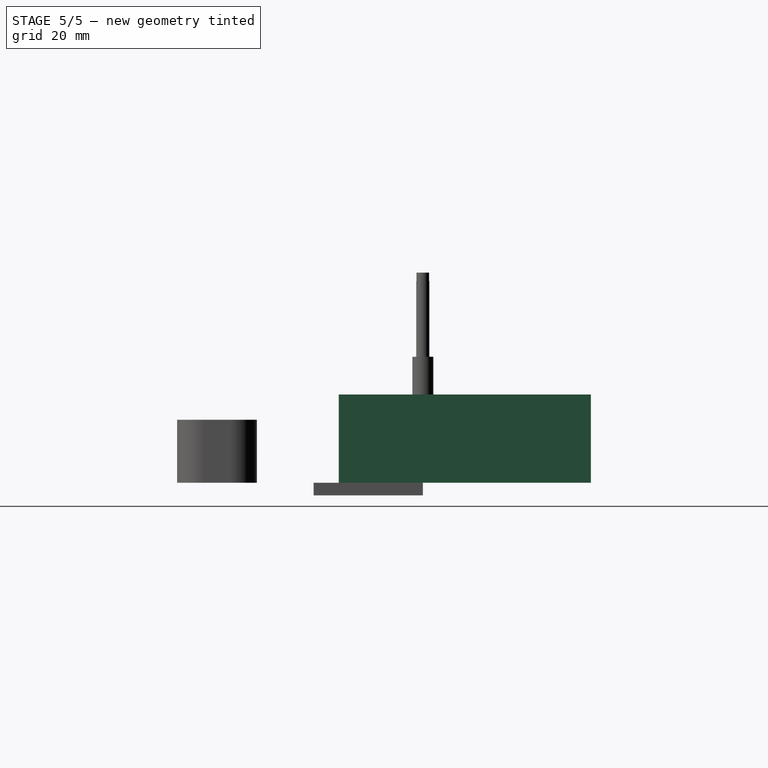
[diagram: stage 5 of 5 — right view after this stage's code; geometry added in this stage tinted green]
FEATURE [Sketcher::SketchObject] Sketch
  FullyConstrained = false
  MapMode = 5
  Support = -> [XY_Plane]
  sketch-geometry (8):
    g0: LineSegment StartX=0 StartY=0 StartZ=0 EndX=93.4 EndY=0 EndZ=0
    g1: LineSegment StartX=93.4 StartY=0 StartZ=0 EndX=93.4 EndY=19.4 EndZ=0
    g2: LineSegment StartX=93.4 StartY=19.4 StartZ=0 EndX=0 EndY=19.4 EndZ=0
    g3: LineSegment StartX=0 StartY=19.4 StartZ=0 EndX=0 EndY=0 EndZ=0
    g4: LineSegment StartX=-20 StartY=40 StartZ=0 EndX=113.4 EndY=40 EndZ=0
    g5: LineSegment StartX=113.4 StartY=40 StartZ=0 EndX=113.4 EndY=-20 EndZ=0
    g6: LineSegment StartX=113.4 StartY=-20 StartZ=0 EndX=-20 EndY=-20 EndZ=0
    g7: LineSegment StartX=-20 StartY=-20 StartZ=0 EndX=-20 EndY=40 EndZ=0
  constraints (21):
    c: Coincident(g0,g1)
    c: Coincident(g1,g2)
    c: Coincident(g2,g3)
    c: Coincident(g3,g0)
    c: Horizontal(g0)
    c: Horizontal(g2)
    c: Vertical(g1)
    c: Vertical(g3)
    c: Coincident(g0,g-1)
    c: DistanceY(g3,g3) = 19.4
    c: DistanceX(g2,g2) = 93.4
    c: Coincident(g4,g5)
    c: Coincident(g5,g6)
    c: Coincident(g6,g7)
    c: Coincident(g7,g4)
    c: Horizontal(g4)
    c: Horizontal(g6)
    c: Vertical(g5)
    c: Vertical(g7)
    c: DistanceX(g4,g4) = 133.4
    c: DistanceY(g7,g7) = 60
FEATURE [PartDesign::Pad] Pad
  Direction = (0,0,1)
  Length = 21
  Length2 = 10
  Profile = -> Sketch
  ReferenceAxis = -> Sketch [N_Axis]
  Type = 0
FEATURE [PartDesign::Fillet] Fillet
  Base = -> Pad [Edge20,Edge13,Edge14,Edge17]
  BaseFeature = -> Pad
  Radius = 6.35
  SupportTransform = false
  UseAllEdges = false
FEATURE [Sketcher::SketchObject] Sketch082
  FullyConstrained = false
  MapMode = 5
  Placement = pos=(0,0,0) rot=(1,0,0;3.14159rad)
  Support = -> [Pad003]
  sketch-geometry (5):
    g0: Circle CenterX=7.84 CenterY=49.04 CenterZ=0 NormalX=0 NormalY=0 NormalZ=1 AngleXU=0 Radius=1.5
    g1: LineSegment StartX=6.59 StartY=49.04 StartZ=0 EndX=9.09 EndY=49.04 EndZ=0
    g2: LineSegment StartX=9.09 StartY=49.05 StartZ=0 EndX=7.84 EndY=49.05 EndZ=0
    g3: LineSegment StartX=87.43 StartY=49.04 StartZ=0 EndX=84.93 EndY=49.04 EndZ=0
    g4: Circle CenterX=86.18 CenterY=49.04 CenterZ=0 NormalX=0 NormalY=0 NormalZ=1 AngleXU=0 Radius=1.5
  constraints (6):
    c: Diameter(g0) = 3
    c: Horizontal(g1)
    c: Horizontal(g2)
    c: Horizontal(g3)
    c: PointOnObject(g4,g3)
    c: Diameter(g4) = 3
FEATURE [PartDesign::Pocket] Pocket
  BaseFeature = -> Pad003
  Direction = (0,0,1)
  Length = 5
  Length2 = 5
  Profile = -> Sketch082
  ReferenceAxis = -> Sketch082 [N_Axis]
  Type = 0
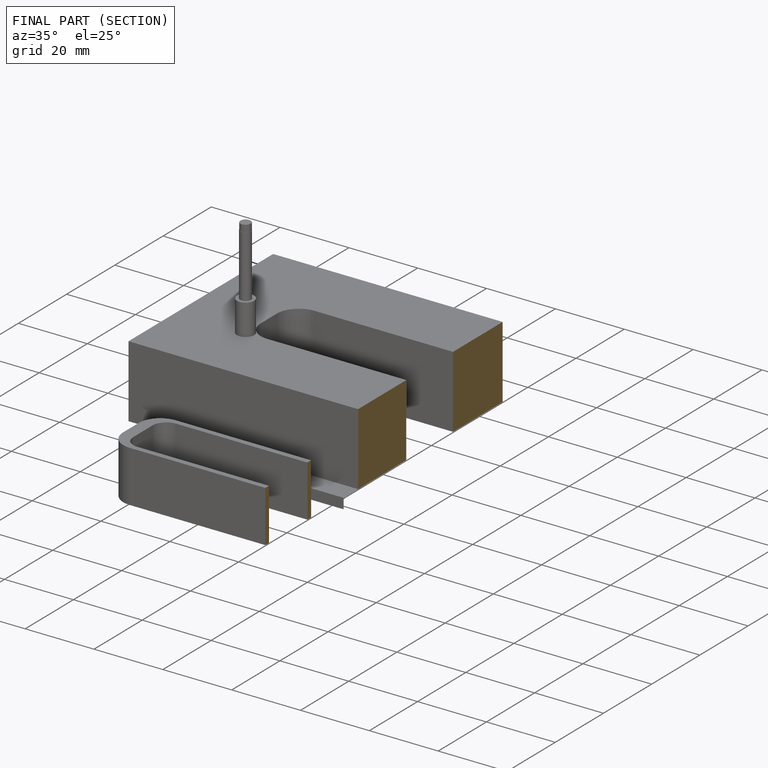
[diagram: finished part — half-section view (interior)]
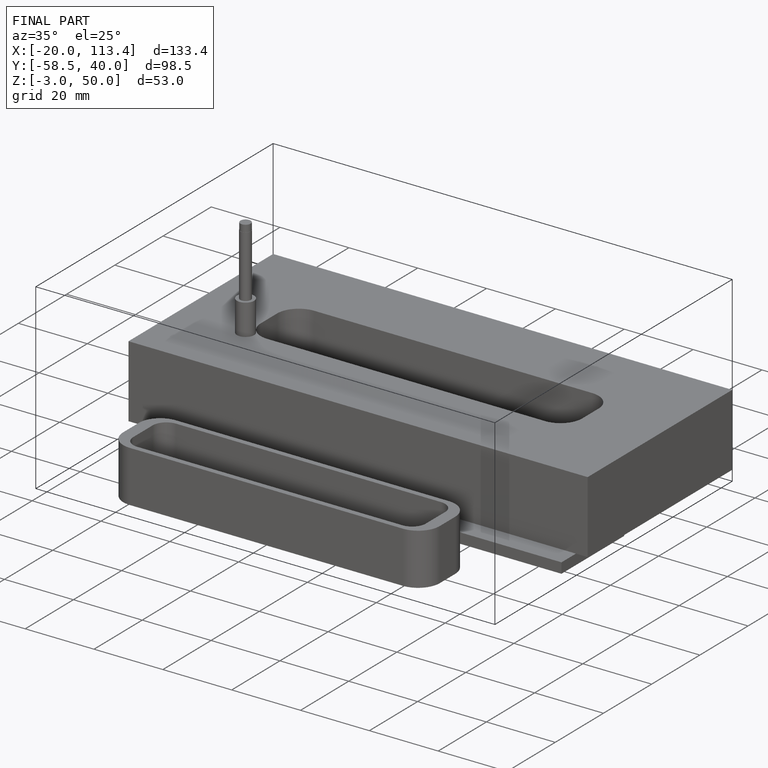
[diagram: finished part — iso view with bounding-box wireframe]
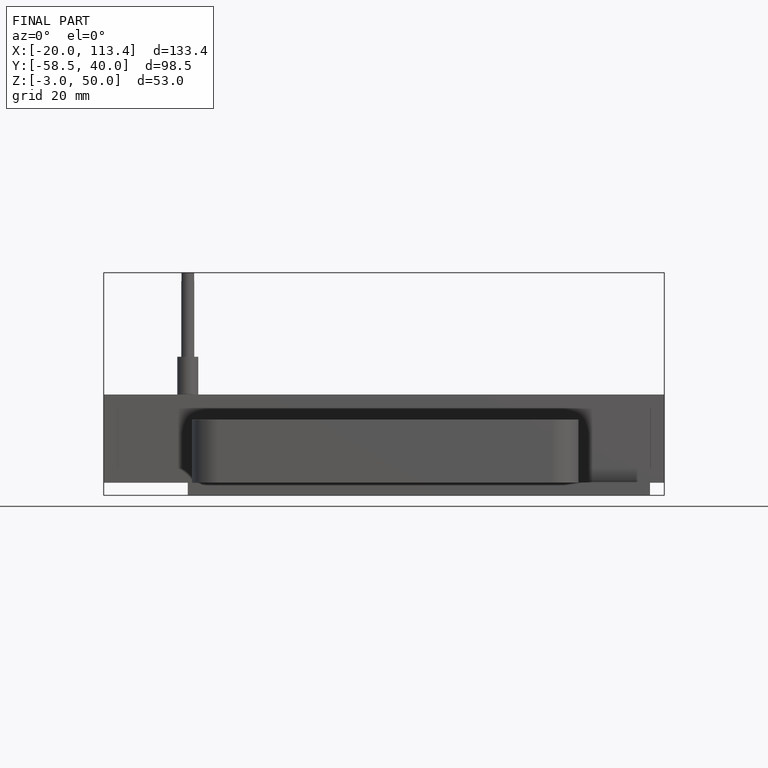
[diagram: finished part — front view with bounding-box wireframe]
